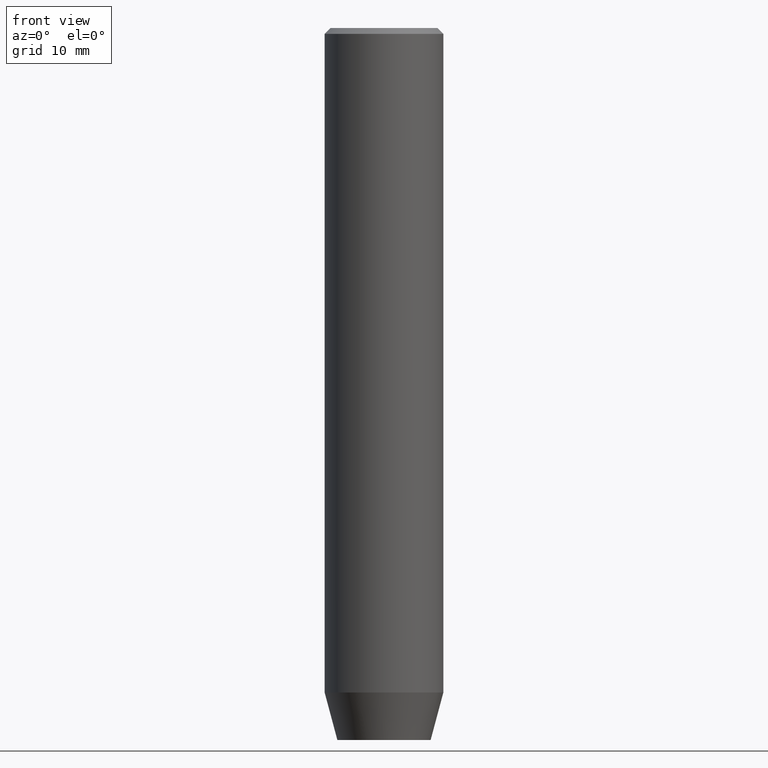
[diagram: clean part render]
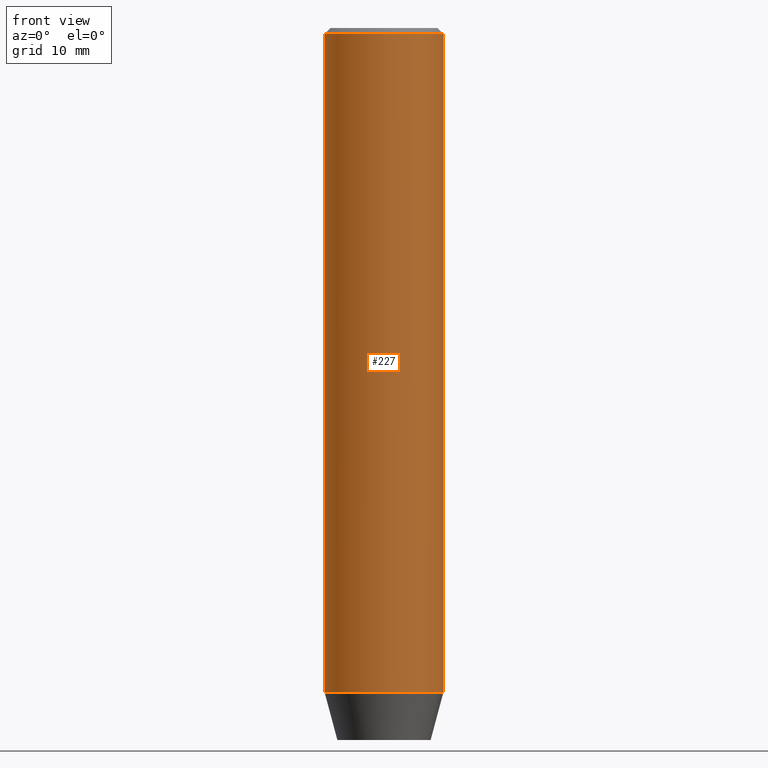
[diagram: same view with one face highlighted and labeled with its STEP entity id]
A machine part, front view. The second image highlights one B-rep face of the part: STEP entity #227.
In plain terms, the highlighted cylindrical surface (partial cylindrical patch) has radius 5 mm, axis along (-0, -0, 1).
Its self-contained STEP definition (entity closure, byte-faithful):
#30 = CYLINDRICAL_SURFACE ( 'NONE', #533, 5.000000000000000000 ) ;
#42 = EDGE_CURVE ( 'NONE', #545, #187, #548, .T. ) ;
#75 = CARTESIAN_POINT ( 'NONE',  ( 5.000000000000000000, 0.000000000000000000, 0.000000000000000000 ) ) ;
#78 = VECTOR ( 'NONE', #83, 1000.000000000000000 ) ;
#83 = DIRECTION ( 'NONE',  ( -0.000000000000000000, -0.000000000000000000, 1.000000000000000000 ) ) ;
#88 = LINE ( 'NONE', #75, #78 ) ;
#110 = AXIS2_PLACEMENT_3D ( 'NONE', #376, #294, #209 ) ;
#119 = ORIENTED_EDGE ( 'NONE', *, *, #165, .T. ) ;
#143 = CARTESIAN_POINT ( 'NONE',  ( -5.000000000000000000, 6.123233995736766282E-16, 0.000000000000000000 ) ) ;
#160 = AXIS2_PLACEMENT_3D ( 'NONE', #458, #544, #412 ) ;
#165 = EDGE_CURVE ( 'NONE', #545, #510, #244, .T. ) ;
#187 = VERTEX_POINT ( 'NONE', #256 ) ;
#209 = DIRECTION ( 'NONE',  ( 1.000000000000000000, 0.000000000000000000, 0.000000000000000000 ) ) ;
#214 = VERTEX_POINT ( 'NONE', #303 ) ;
#227 = ADVANCED_FACE ( 'NONE', ( #388 ), #30, .T. ) ;
#239 = ORIENTED_EDGE ( 'NONE', *, *, #340, .T. ) ;
#244 = CIRCLE ( 'NONE', #110, 5.000000000000000000 ) ;
#255 = CARTESIAN_POINT ( 'NONE',  ( -5.000000000000000000, 6.123233995736766282E-16, -55.99999999999999289 ) ) ;
#256 = CARTESIAN_POINT ( 'NONE',  ( -5.000000000000000000, 6.123233995736766282E-16, -0.5000000000000065503 ) ) ;
#265 = CARTESIAN_POINT ( 'NONE',  ( 0.000000000000000000, 0.000000000000000000, 0.000000000000000000 ) ) ;
#294 = DIRECTION ( 'NONE',  ( -0.000000000000000000, -0.000000000000000000, 1.000000000000000000 ) ) ;
#303 = CARTESIAN_POINT ( 'NONE',  ( 5.000000000000000000, 0.000000000000000000, -0.5000000000000065503 ) ) ;
#312 = ORIENTED_EDGE ( 'NONE', *, *, #42, .F. ) ;
#318 = EDGE_LOOP ( 'NONE', ( #312, #119, #555, #239 ) ) ;
#326 = CARTESIAN_POINT ( 'NONE',  ( 5.000000000000000000, 0.000000000000000000, -55.99999999999999289 ) ) ;
#330 = VECTOR ( 'NONE', #401, 1000.000000000000000 ) ;
#340 = EDGE_CURVE ( 'NONE', #214, #187, #580, .T. ) ;
#376 = CARTESIAN_POINT ( 'NONE',  ( 0.000000000000000000, 0.000000000000000000, -55.99999999999999289 ) ) ;
#388 = FACE_OUTER_BOUND ( 'NONE', #318, .T. ) ;
#401 = DIRECTION ( 'NONE',  ( -0.000000000000000000, -0.000000000000000000, 1.000000000000000000 ) ) ;
#412 = DIRECTION ( 'NONE',  ( 1.000000000000000000, 0.000000000000000000, 0.000000000000000000 ) ) ;
#439 = DIRECTION ( 'NONE',  ( -0.000000000000000000, -0.000000000000000000, 1.000000000000000000 ) ) ;
#458 = CARTESIAN_POINT ( 'NONE',  ( 0.000000000000000000, 0.000000000000000000, -0.5000000000000065503 ) ) ;
#481 = DIRECTION ( 'NONE',  ( 1.000000000000000000, 0.000000000000000000, 0.000000000000000000 ) ) ;
#510 = VERTEX_POINT ( 'NONE', #326 ) ;
#533 = AXIS2_PLACEMENT_3D ( 'NONE', #265, #439, #481 ) ;
#544 = DIRECTION ( 'NONE',  ( 0.000000000000000000, 0.000000000000000000, -1.000000000000000000 ) ) ;
#545 = VERTEX_POINT ( 'NONE', #255 ) ;
#548 = LINE ( 'NONE', #143, #330 ) ;
#555 = ORIENTED_EDGE ( 'NONE', *, *, #585, .T. ) ;
#580 = CIRCLE ( 'NONE', #160, 5.000000000000000000 ) ;
#585 = EDGE_CURVE ( 'NONE', #510, #214, #88, .T. ) ;